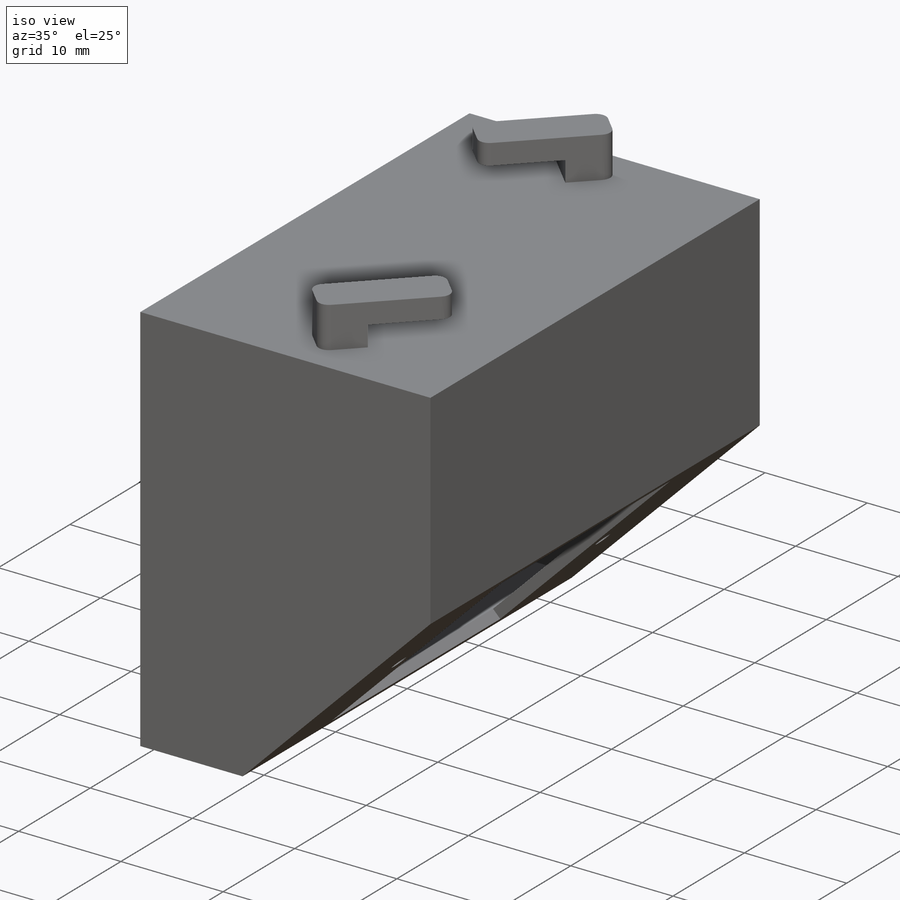
[diagram: iso view]
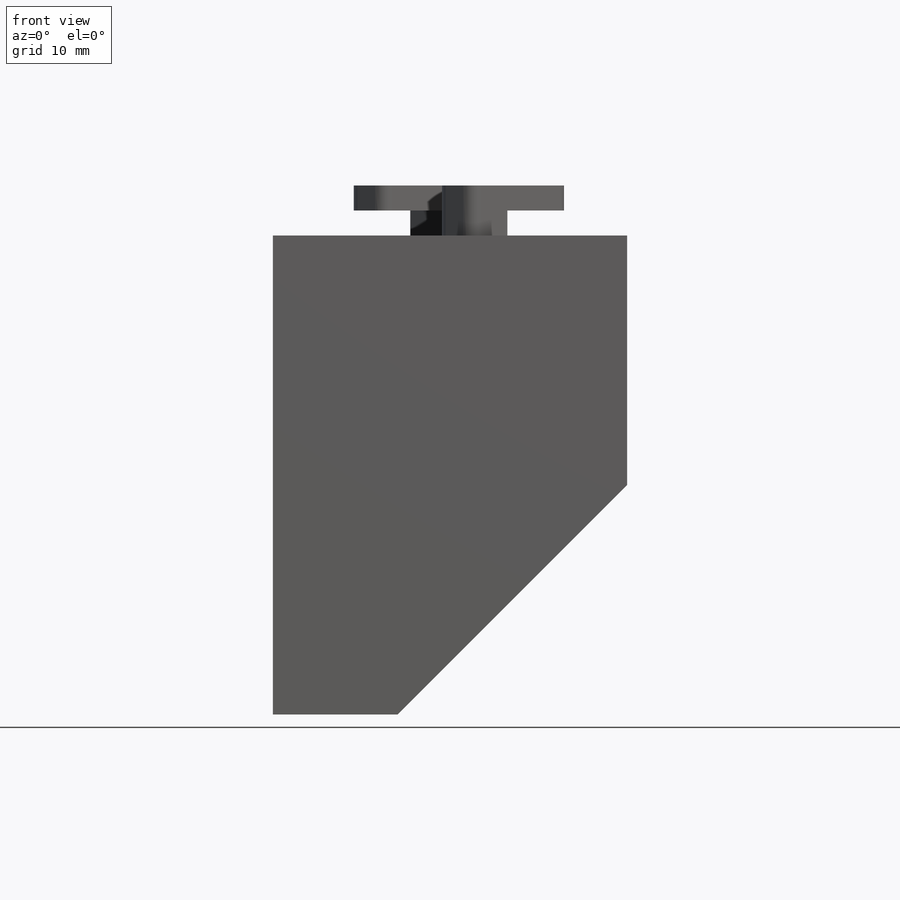
[diagram: front view]
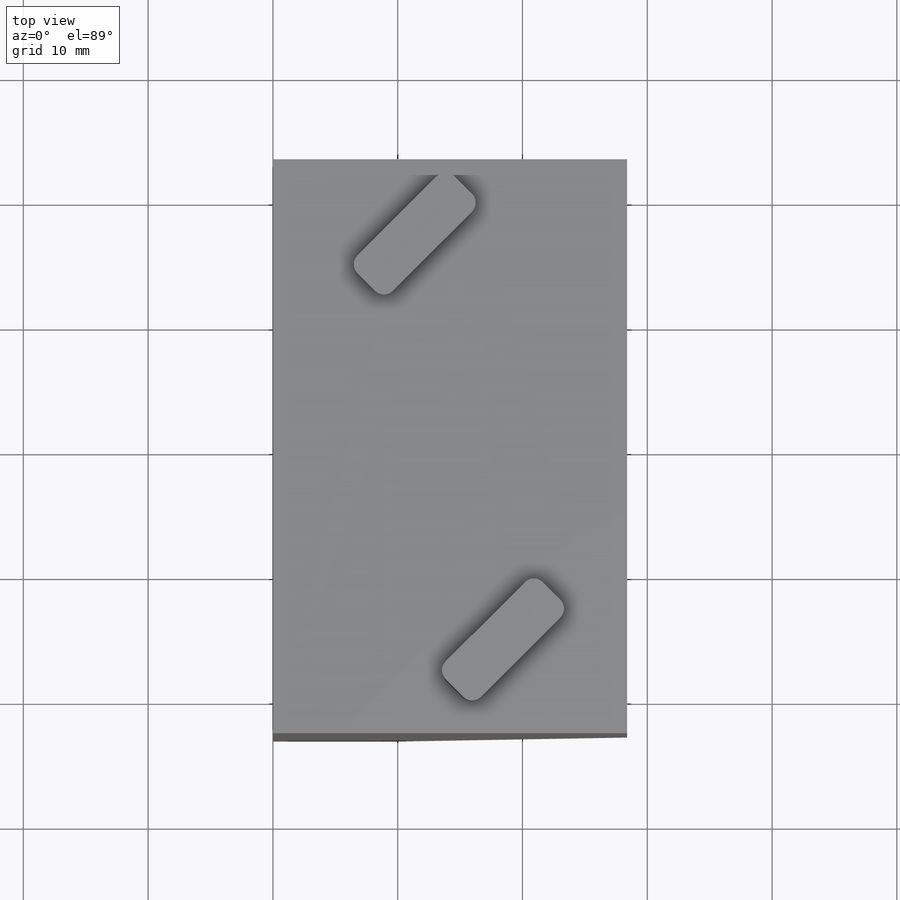
[diagram: top view]
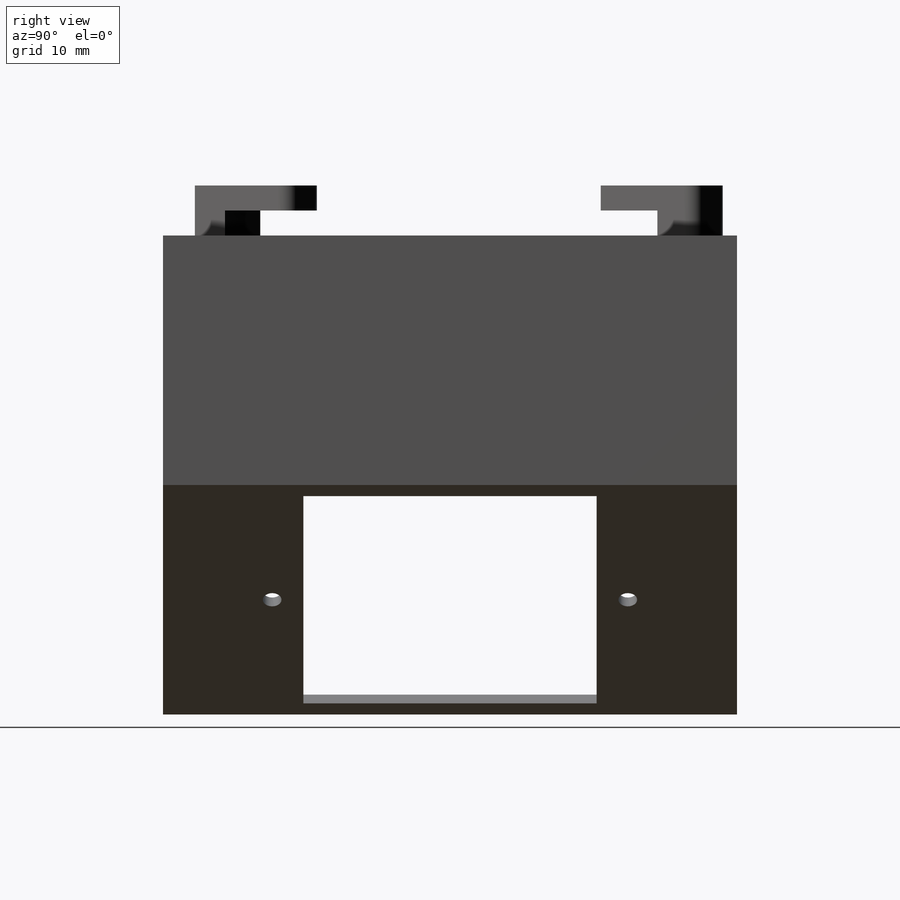
[diagram: right view]
SOLIDWORKS PART (.sldprt)
format: sldprt  version: not decoded by parser v0  size: 262,656 bytes
history: native  units: mm
features: sketch x6, extrude x5, plane x3, material x1, fillet x1, cut_extrude x1 (+10 scaffold rows collapsed)
feature tree (27):
  scaffold x10  (default folders/planes/origin — collapsed)
  material  "Matériau <non spécifié>"
  plane  "Plan de face"
  plane  "Plan de dessus"
  plane  "Plan de droite"
  sketch  "Esquisse1"  dims[c1.D1=30.0mm c1.D2=40.0mm c1.D3=1.0mm c2.D1=~28.102518mm c3.D1=135.0deg c3.D2=26.0mm c3.D3=10.0mm c3.D4=20.0mm c3.D5=1.0mm]
  extrude  "Boss.-Extru.1"  Depth=22mm
  sketch  "Esquisse2"
  extrude  "Boss.-Extru.5"  Depth=1mm
  sketch  "Esquisse3"
  extrude  "Boss.-Extru.6"  Depth=1mm
  sketch  "Esquisse4"  dims[c1.D1=~50.589674mm c2.D1=45.0deg c2.D2=4.0mm c2.D3=4.0mm c2.D4=11.5mm c2.D5=12.0mm c2.D6=2.0]
  extrude  "Boss.-Extru.7"  Depth=2mm
  sketch  "Esquisse5"  dims[D1=11.0mm 11=11.0mm]
  extrude  "Boss.-Extru.8"  Depth=2mm
  fillet  "Congé1"  Radius=1mm
  sketch  "Esquisse6"  dims[D3=1.5mm D4=1.5mm D1=23.5mm D2=23.5mm D5=14.25mm]
  cut_extrude  "Enlèv. mat.-Extru.1"  Depth=2mm
decode coverage: 11 of 13 modeling features carry decoded parameters
note: ~ marks probable driven/reference dimensions
note: suppression state not decoded; provenance and decode notes live in map.json
